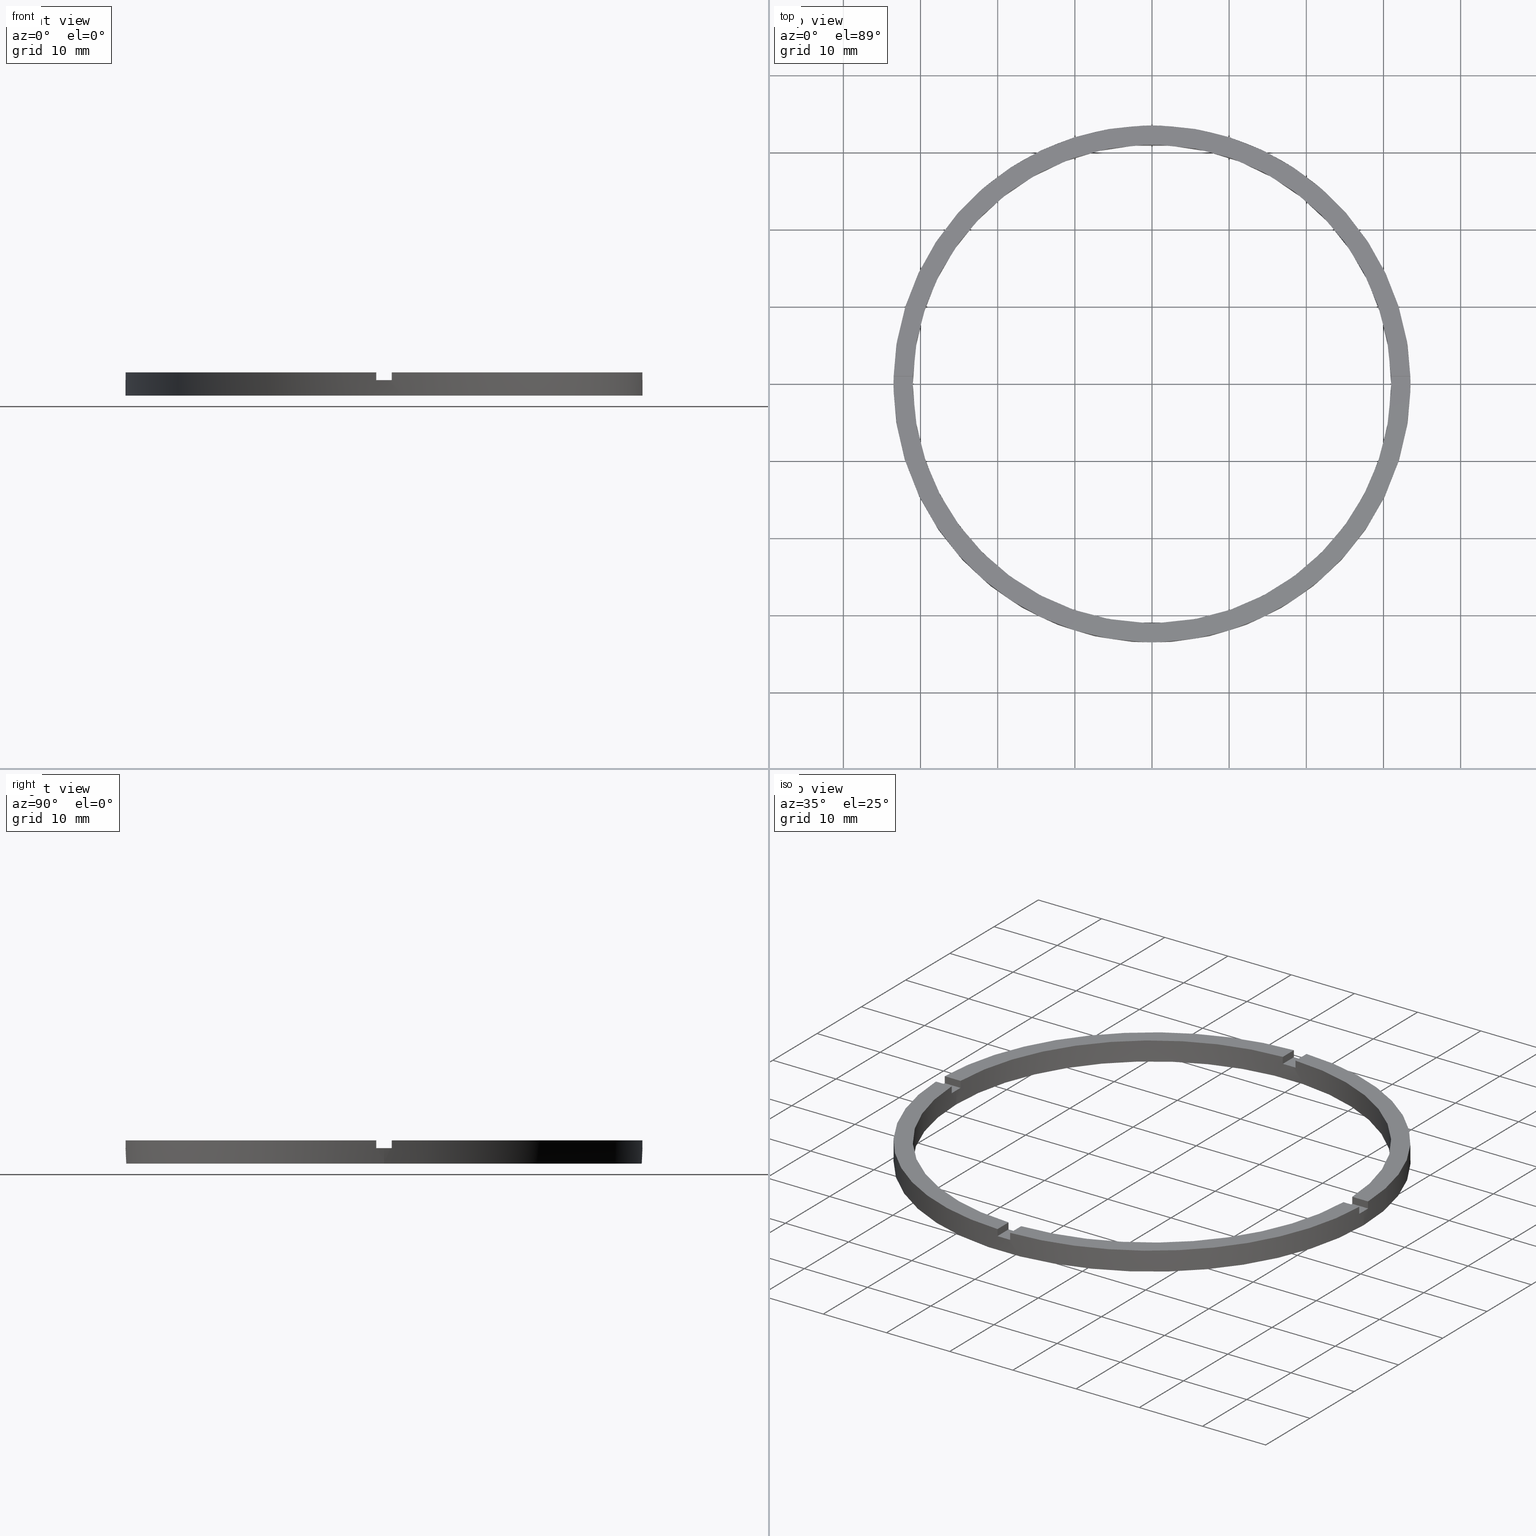
[diagram: canonical four-view strip — front | top / right | iso, engineering-drawing reading convention]
A machine part, canonical four-view strip (front | top / right | iso — engineering-drawing reading convention). The complete STEP part file that produces these views, byte-faithful:
ISO-10303-21;
HEADER;
FILE_DESCRIPTION (( 'STEP AP203' ),
    '1' );
FILE_NAME ('514139.step',
    '2024-12-26T02:41:16',
    ( 'MSI' ),
    ( '' ),
    'SwSTEP 2.0',
    'SolidWorks 2020',
    '' );
FILE_SCHEMA (( 'CONFIG_CONTROL_DESIGN' ));
ENDSEC;

DATA;
#1 = DIRECTION ( 'NONE',  ( -0.000000000000000000, -1.000000000000000000, -0.000000000000000000 ) ) ;
#2 = EDGE_CURVE ( 'NONE', #64, #483, #418, .T. ) ;
#3 = DIRECTION ( 'NONE',  ( -1.301042606982605074E-16, 1.000000000000000000, -0.000000000000000000 ) ) ;
#4 = ORIENTED_EDGE ( 'NONE', *, *, #566, .T. ) ;
#5 = DIRECTION ( 'NONE',  ( 1.000000000000000000, -0.000000000000000000, 0.000000000000000000 ) ) ;
#6 = ORIENTED_EDGE ( 'NONE', *, *, #600, .T. ) ;
#7 = AXIS2_PLACEMENT_3D ( 'NONE', #759, #772, #29 ) ;
#8 = EDGE_CURVE ( 'NONE', #726, #669, #150, .T. ) ;
#9 = CARTESIAN_POINT ( 'NONE',  ( -1.000000000000160982, -33.48507130050644065, 3.000000000000000000 ) ) ;
#10 = VERTEX_POINT ( 'NONE', #367 ) ;
#11 = CARTESIAN_POINT ( 'NONE',  ( -1.000000000000024647, 30.98386676965933617, 3.000000000000000000 ) ) ;
#12 = ORIENTED_EDGE ( 'NONE', *, *, #683, .F. ) ;
#13 = ORIENTED_EDGE ( 'NONE', *, *, #754, .F. ) ;
#14 = DIRECTION ( 'NONE',  ( -0.000000000000000000, 0.000000000000000000, 1.000000000000000000 ) ) ;
#15 = CC_DESIGN_PERSON_AND_ORGANIZATION_ASSIGNMENT ( #375, #182, ( #257 ) ) ;
#16 = EDGE_LOOP ( 'NONE', ( #226, #736, #491, #62 ) ) ;
#17 = EDGE_CURVE ( 'NONE', #325, #544, #747, .T. ) ;
#18 = ORIENTED_EDGE ( 'NONE', *, *, #566, .F. ) ;
#19 = CARTESIAN_POINT ( 'NONE',  ( 0.000000000000000000, 0.000000000000000000, 3.000000000000000000 ) ) ;
#20 = ORIENTED_EDGE ( 'NONE', *, *, #349, .T. ) ;
#21 = AXIS2_PLACEMENT_3D ( 'NONE', #649, #194, #66 ) ;
#22 = DIRECTION ( 'NONE',  ( -0.000000000000000000, -0.000000000000000000, -1.000000000000000000 ) ) ;
#23 = DIRECTION ( 'NONE',  ( 0.000000000000000000, 0.000000000000000000, 1.000000000000000000 ) ) ;
#24 = EDGE_CURVE ( 'NONE', #10, #503, #201, .T. ) ;
#25 = CARTESIAN_POINT ( 'NONE',  ( 0.9999999999998391287, -33.48507130050644776, 3.000000000000000000 ) ) ;
#26 = ADVANCED_FACE ( 'NONE', ( #727 ), #448, .F. ) ;
#27 = AXIS2_PLACEMENT_3D ( 'NONE', #710, #407, #569 ) ;
#28 = CARTESIAN_POINT ( 'NONE',  ( 0.000000000000000000, 0.000000000000000000, 3.000000000000000000 ) ) ;
#29 = DIRECTION ( 'NONE',  ( 1.000000000000000000, 0.000000000000000000, 0.000000000000000000 ) ) ;
#30 = AXIS2_PLACEMENT_3D ( 'NONE', #662, #22, #416 ) ;
#31 = EDGE_CURVE ( 'NONE', #58, #782, #718, .T. ) ;
#32 = ADVANCED_FACE ( 'NONE', ( #234 ), #230, .F. ) ;
#33 = CARTESIAN_POINT ( 'NONE',  ( 0.000000000000000000, 0.000000000000000000, 2.000000000000000000 ) ) ;
#34 = PERSON_AND_ORGANIZATION_ROLE ( 'design_supplier' ) ;
#35 = CARTESIAN_POINT ( 'NONE',  ( 0.000000000000000000, 0.000000000000000000, 3.000000000000000000 ) ) ;
#36 = CARTESIAN_POINT ( 'NONE',  ( -30.98386676965933617, 0.9999999999999740208, 2.000000000000000000 ) ) ;
#37 = DIRECTION ( 'NONE',  ( 0.000000000000000000, 0.000000000000000000, 1.000000000000000000 ) ) ;
#38 = PLANE ( 'NONE',  #163 ) ;
#39 = EDGE_CURVE ( 'NONE', #10, #436, #221, .T. ) ;
#40 = CARTESIAN_POINT ( 'NONE',  ( -1.000000000000161204, -30.98386676965932907, 3.000000000000000000 ) ) ;
#41 = EDGE_CURVE ( 'NONE', #592, #596, #735, .T. ) ;
#42 = CARTESIAN_POINT ( 'NONE',  ( 23.49999999999999289, -1.000000000000158984, 2.000000000000000000 ) ) ;
#43 = CARTESIAN_POINT ( 'NONE',  ( 30.98386676965933972, 0.9999999999998414602, 2.000000000000000000 ) ) ;
#44 = ADVANCED_FACE ( 'NONE', ( #468 ), #748, .T. ) ;
#45 = AXIS2_PLACEMENT_3D ( 'NONE', #469, #541, #229 ) ;
#46 = EDGE_CURVE ( 'NONE', #184, #524, #459, .T. ) ;
#47 = DIRECTION ( 'NONE',  ( 1.000000000000000000, 0.000000000000000000, 0.000000000000000000 ) ) ;
#48 = CARTESIAN_POINT ( 'NONE',  ( -30.98386676965933617, -1.000000000000025979, 3.000000000000000000 ) ) ;
#49 = MANIFOLD_SOLID_BREP ( '�г�-����1', #157 ) ;
#50 = AXIS2_PLACEMENT_3D ( 'NONE', #278, #390, #521 ) ;
#51 = CARTESIAN_POINT ( 'NONE',  ( -33.48507130050644776, 0.9999999999999735767, 3.000000000000000000 ) ) ;
#52 = VERTEX_POINT ( 'NONE', #9 ) ;
#53 = EDGE_CURVE ( 'NONE', #184, #730, #725, .T. ) ;
#54 = DIRECTION ( 'NONE',  ( -0.000000000000000000, -0.000000000000000000, -1.000000000000000000 ) ) ;
#55 = ORIENTED_EDGE ( 'NONE', *, *, #685, .F. ) ;
#56 = CARTESIAN_POINT ( 'NONE',  ( 23.49999999999999289, 0.9999999999998411271, 3.000000000000000000 ) ) ;
#57 = ORIENTED_EDGE ( 'NONE', *, *, #95, .T. ) ;
#58 = VERTEX_POINT ( 'NONE', #510 ) ;
#59 = EDGE_LOOP ( 'NONE', ( #473, #449, #729, #527, #583, #220, #770, #716, #532, #204, #4, #176 ) ) ;
#60 = CARTESIAN_POINT ( 'NONE',  ( 31.00000000000000000, 3.796405077356795115E-15, 3.000000000000000000 ) ) ;
#61 = EDGE_LOOP ( 'NONE', ( #198, #256, #274, #181 ) ) ;
#62 = ORIENTED_EDGE ( 'NONE', *, *, #107, .F. ) ;
#63 = VECTOR ( 'NONE', #132, 1000.000000000000000 ) ;
#64 = VERTEX_POINT ( 'NONE', #48 ) ;
#65 = VERTEX_POINT ( 'NONE', #139 ) ;
#66 = DIRECTION ( 'NONE',  ( 1.000000000000000000, 6.505213034913025371E-17, 0.000000000000000000 ) ) ;
#67 = APPLICATION_PROTOCOL_DEFINITION ( 'international standard', 'config_control_design', 1994, #424 ) ;
#68 = DIRECTION ( 'NONE',  ( 0.000000000000000000, 0.000000000000000000, 1.000000000000000000 ) ) ;
#69 = ORIENTED_EDGE ( 'NONE', *, *, #388, .F. ) ;
#70 = CARTESIAN_POINT ( 'NONE',  ( 0.9999999999999753530, 30.98386676965933617, 3.000000000000000000 ) ) ;
#71 = CIRCLE ( 'NONE', #45, 33.50000000000000000 ) ;
#72 = ORIENTED_EDGE ( 'NONE', *, *, #275, .T. ) ;
#73 = LINE ( 'NONE', #556, #604 ) ;
#74 = ORIENTED_EDGE ( 'NONE', *, *, #658, .F. ) ;
#75 = CARTESIAN_POINT ( 'NONE',  ( 0.000000000000000000, 0.000000000000000000, 0.000000000000000000 ) ) ;
#76 = CARTESIAN_POINT ( 'NONE',  ( 0.000000000000000000, 0.000000000000000000, 3.000000000000000000 ) ) ;
#77 = VECTOR ( 'NONE', #99, 1000.000000000000000 ) ;
#78 = LINE ( 'NONE', #688, #615 ) ;
#79 = VECTOR ( 'NONE', #350, 1000.000000000000000 ) ;
#80 = LINE ( 'NONE', #652, #93 ) ;
#81 = DIRECTION ( 'NONE',  ( 0.000000000000000000, 0.000000000000000000, 1.000000000000000000 ) ) ;
#82 = CARTESIAN_POINT ( 'NONE',  ( -23.50000000000018829, -1.000000000000024425, 2.000000000000000000 ) ) ;
#83 = FACE_OUTER_BOUND ( 'NONE', #706, .T. ) ;
#84 = VECTOR ( 'NONE', #699, 1000.000000000000000 ) ;
#85 = FACE_OUTER_BOUND ( 'NONE', #740, .T. ) ;
#86 = AXIS2_PLACEMENT_3D ( 'NONE', #578, #657, #402 ) ;
#87 = AXIS2_PLACEMENT_3D ( 'NONE', #721, #412, #504 ) ;
#88 = CIRCLE ( 'NONE', #293, 31.00000000000000000 ) ;
#89 = DIRECTION ( 'NONE',  ( 0.000000000000000000, 0.000000000000000000, 1.000000000000000000 ) ) ;
#90 = DIRECTION ( 'NONE',  ( 0.000000000000000000, 0.000000000000000000, 1.000000000000000000 ) ) ;
#91 = ADVANCED_FACE ( 'NONE', ( #472 ), #166, .T. ) ;
#92 = DIRECTION ( 'NONE',  ( 0.000000000000000000, 0.000000000000000000, 1.000000000000000000 ) ) ;
#93 = VECTOR ( 'NONE', #248, 1000.000000000000000 ) ;
#94 = DIRECTION ( 'NONE',  ( 1.000000000000000000, 0.000000000000000000, 0.000000000000000000 ) ) ;
#95 = EDGE_CURVE ( 'NONE', #595, #310, #192, .T. ) ;
#96 = LINE ( 'NONE', #776, #84 ) ;
#97 = FACE_OUTER_BOUND ( 'NONE', #673, .T. ) ;
#98 = CIRCLE ( 'NONE', #523, 31.00000000000000000 ) ;
#99 = DIRECTION ( 'NONE',  ( -0.000000000000000000, -0.000000000000000000, -1.000000000000000000 ) ) ;
#100 = LINE ( 'NONE', #42, #340 ) ;
#101 = CARTESIAN_POINT ( 'NONE',  ( 30.98386676965932907, -1.000000000000158540, 2.000000000000000000 ) ) ;
#102 = DIRECTION ( 'NONE',  ( -0.000000000000000000, 0.000000000000000000, 1.000000000000000000 ) ) ;
#103 = PERSON_AND_ORGANIZATION ( #617, #116 ) ;
#104 = AXIS2_PLACEMENT_3D ( 'NONE', #33, #37, #142 ) ;
#105 = CALENDAR_DATE ( 2024, 26, 12 ) ;
#106 = CARTESIAN_POINT ( 'NONE',  ( 0.9999999999999753530, 33.48507130050644776, 3.000000000000000000 ) ) ;
#107 = EDGE_CURVE ( 'NONE', #696, #310, #474, .T. ) ;
#108 = LOCAL_TIME ( 10, 41, 16.00000000000000000, #384 ) ;
#109 = PLANE ( 'NONE',  #244 ) ;
#110 = CARTESIAN_POINT ( 'NONE',  ( 0.000000000000000000, 0.000000000000000000, 2.000000000000000000 ) ) ;
#111 = PERSON_AND_ORGANIZATION ( #617, #116 ) ;
#112 = APPROVAL_PERSON_ORGANIZATION ( #111, #607, #225 ) ;
#113 = DIRECTION ( 'NONE',  ( -1.000000000000000000, -1.951563910473907735E-16, 0.000000000000000000 ) ) ;
#114 = CARTESIAN_POINT ( 'NONE',  ( -33.50000000000000000, 0.000000000000000000, 2.000000000000000000 ) ) ;
#115 = DATE_AND_TIME ( #627, #653 ) ;
#116 = ORGANIZATION ( 'δָ��', 'δָ��', '' ) ;
#117 = APPROVAL_DATE_TIME ( #638, #622 ) ;
#118 = PERSON_AND_ORGANIZATION ( #617, #116 ) ;
#119 = APPROVAL_PERSON_ORGANIZATION ( #646, #426, #379 ) ;
#120 = DIRECTION ( 'NONE',  ( 0.000000000000000000, 0.000000000000000000, 1.000000000000000000 ) ) ;
#121 = DATE_AND_TIME ( #105, #366 ) ;
#122 = EDGE_CURVE ( 'NONE', #312, #591, #454, .T. ) ;
#123 = DIRECTION ( 'NONE',  ( 0.000000000000000000, 0.000000000000000000, 1.000000000000000000 ) ) ;
#124 = DIRECTION ( 'NONE',  ( -0.000000000000000000, -0.000000000000000000, -1.000000000000000000 ) ) ;
#125 = AXIS2_PLACEMENT_3D ( 'NONE', #522, #102, #555 ) ;
#126 = EDGE_CURVE ( 'NONE', #488, #316, #741, .T. ) ;
#127 = DIRECTION ( 'NONE',  ( -0.000000000000000000, -0.000000000000000000, -1.000000000000000000 ) ) ;
#128 = DIRECTION ( 'NONE',  ( -0.000000000000000000, -0.000000000000000000, -1.000000000000000000 ) ) ;
#129 = APPROVAL_STATUS ( 'not_yet_approved' ) ;
#130 = CARTESIAN_POINT ( 'NONE',  ( -1.000000000000024647, 33.48507130050644065, 3.000000000000000000 ) ) ;
#131 = DIRECTION ( 'NONE',  ( 0.000000000000000000, -0.000000000000000000, 1.000000000000000000 ) ) ;
#132 = DIRECTION ( 'NONE',  ( 1.000000000000000000, 6.505213034913025371E-17, 0.000000000000000000 ) ) ;
#133 = ADVANCED_FACE ( 'NONE', ( #731 ), #398, .F. ) ;
#134 = CARTESIAN_POINT ( 'NONE',  ( 33.48507130050644776, 0.9999999999998416822, 3.000000000000000000 ) ) ;
#135 = CC_DESIGN_APPROVAL ( #607, ( #550 ) ) ;
#136 = ADVANCED_FACE ( 'NONE', ( #205 ), #443, .T. ) ;
#137 = EDGE_CURVE ( 'NONE', #704, #331, #215, .T. ) ;
#138 = DIRECTION ( 'NONE',  ( 1.000000000000000000, 0.000000000000000000, 0.000000000000000000 ) ) ;
#139 = CARTESIAN_POINT ( 'NONE',  ( 0.9999999999999753530, 33.48507130050644776, 3.000000000000000000 ) ) ;
#140 = AXIS2_PLACEMENT_3D ( 'NONE', #457, #629, #262 ) ;
#141 = CC_DESIGN_PERSON_AND_ORGANIZATION_ASSIGNMENT ( #371, #630, ( #169 ) ) ;
#142 = DIRECTION ( 'NONE',  ( 1.000000000000000000, 0.000000000000000000, -0.000000000000000000 ) ) ;
#143 = MECHANICAL_CONTEXT ( 'NONE', #424, 'mechanical' ) ;
#144 = DIRECTION ( 'NONE',  ( 0.000000000000000000, 0.000000000000000000, 1.000000000000000000 ) ) ;
#145 = CARTESIAN_POINT ( 'NONE',  ( 30.98386676965933972, 0.9999999999998414602, 3.000000000000000000 ) ) ;
#146 = EDGE_CURVE ( 'NONE', #310, #775, #500, .T. ) ;
#147 = UNCERTAINTY_MEASURE_WITH_UNIT (LENGTH_MEASURE( 1.000000000000000082E-05 ), #263, 'distance_accuracy_value', 'NONE');
#148 = DIRECTION ( 'NONE',  ( 1.000000000000000000, 6.505213034913025371E-17, 0.000000000000000000 ) ) ;
#149 = DIRECTION ( 'NONE',  ( 1.000000000000000000, 0.000000000000000000, 0.000000000000000000 ) ) ;
#150 = LINE ( 'NONE', #279, #414 ) ;
#151 = VERTEX_POINT ( 'NONE', #773 ) ;
#152 = AXIS2_PLACEMENT_3D ( 'NONE', #353, #236, #288 ) ;
#153 = EDGE_LOOP ( 'NONE', ( #57, #576, #447, #168 ) ) ;
#154 = ORIENTED_EDGE ( 'NONE', *, *, #437, .T. ) ;
#155 = ORIENTED_EDGE ( 'NONE', *, *, #547, .F. ) ;
#156 = AXIS2_PLACEMENT_3D ( 'NONE', #35, #251, #308 ) ;
#157 = CLOSED_SHELL ( 'NONE', ( #32, #383, #188, #394, #136, #313, #564, #44, #26, #761, #560, #668, #133, #321, #309, #525, #640, #91, #199, #677, #209 ) ) ;
#158 = ORIENTED_EDGE ( 'NONE', *, *, #261, .T. ) ;
#159 = EDGE_LOOP ( 'NONE', ( #580, #680, #264, #155 ) ) ;
#160 = ORIENTED_EDGE ( 'NONE', *, *, #767, .T. ) ;
#161 = DIRECTION ( 'NONE',  ( -6.505213034913025371E-17, 1.000000000000000000, 0.000000000000000000 ) ) ;
#162 = ORIENTED_EDGE ( 'NONE', *, *, #377, .T. ) ;
#163 = AXIS2_PLACEMENT_3D ( 'NONE', #82, #528, #571 ) ;
#164 = CARTESIAN_POINT ( 'NONE',  ( -1.000000000000161204, -30.98386676965932907, 2.000000000000000000 ) ) ;
#165 = EDGE_CURVE ( 'NONE', #592, #674, #744, .T. ) ;
#166 = PLANE ( 'NONE',  #634 ) ;
#167 = CARTESIAN_POINT ( 'NONE',  ( 0.9999999999999753530, 23.50000000000000000, 3.000000000000000000 ) ) ;
#168 = ORIENTED_EDGE ( 'NONE', *, *, #458, .T. ) ;
#169 = SECURITY_CLASSIFICATION ( '', '', #670 ) ;
#170 = EDGE_CURVE ( 'NONE', #669, #596, #750, .T. ) ;
#171 = ORIENTED_EDGE ( 'NONE', *, *, #777, .T. ) ;
#172 = DIRECTION ( 'NONE',  ( -1.000000000000000000, 0.000000000000000000, 0.000000000000000000 ) ) ;
#173 = ORIENTED_EDGE ( 'NONE', *, *, #626, .T. ) ;
#174 = ORIENTED_EDGE ( 'NONE', *, *, #165, .F. ) ;
#175 = AXIS2_PLACEMENT_3D ( 'NONE', #441, #684, #180 ) ;
#176 = ORIENTED_EDGE ( 'NONE', *, *, #406, .F. ) ;
#177 = ORIENTED_EDGE ( 'NONE', *, *, #547, .T. ) ;
#178 = EDGE_LOOP ( 'NONE', ( #781, #158, #543, #189, #538, #440, #266, #206, #478, #239, #749, #492 ) ) ;
#179 = FACE_OUTER_BOUND ( 'NONE', #745, .T. ) ;
#180 = DIRECTION ( 'NONE',  ( 1.000000000000000000, 0.000000000000000000, 0.000000000000000000 ) ) ;
#181 = ORIENTED_EDGE ( 'NONE', *, *, #664, .F. ) ;
#182 = PERSON_AND_ORGANIZATION_ROLE ( 'creator' ) ;
#183 = DIRECTION ( 'NONE',  ( 0.000000000000000000, 0.000000000000000000, 1.000000000000000000 ) ) ;
#184 = VERTEX_POINT ( 'NONE', #36 ) ;
#185 = EDGE_CURVE ( 'NONE', #422, #775, #476, .T. ) ;
#186 = LINE ( 'NONE', #328, #193 ) ;
#187 = ORIENTED_EDGE ( 'NONE', *, *, #126, .F. ) ;
#188 = ADVANCED_FACE ( 'NONE', ( #480 ), #446, .T. ) ;
#189 = ORIENTED_EDGE ( 'NONE', *, *, #754, .T. ) ;
#190 = VECTOR ( 'NONE', #425, 1000.000000000000000 ) ;
#191 = ORIENTED_EDGE ( 'NONE', *, *, #626, .F. ) ;
#192 = CIRCLE ( 'NONE', #586, 33.50000000000000000 ) ;
#193 = VECTOR ( 'NONE', #531, 1000.000000000000000 ) ;
#194 = DIRECTION ( 'NONE',  ( 6.505213034913025371E-17, -1.000000000000000000, 0.000000000000000000 ) ) ;
#195 = ORIENTED_EDGE ( 'NONE', *, *, #41, .T. ) ;
#196 = VECTOR ( 'NONE', #537, 1000.000000000000000 ) ;
#197 = AXIS2_PLACEMENT_3D ( 'NONE', #305, #619, #94 ) ;
#198 = ORIENTED_EDGE ( 'NONE', *, *, #553, .F. ) ;
#199 = ADVANCED_FACE ( 'NONE', ( #738 ), #565, .F. ) ;
#200 = VERTEX_POINT ( 'NONE', #70 ) ;
#201 = LINE ( 'NONE', #554, #723 ) ;
#202 = DIRECTION ( 'NONE',  ( 0.000000000000000000, 0.000000000000000000, 1.000000000000000000 ) ) ;
#203 = CARTESIAN_POINT ( 'NONE',  ( 0.000000000000000000, 0.000000000000000000, 0.000000000000000000 ) ) ;
#204 = ORIENTED_EDGE ( 'NONE', *, *, #587, .F. ) ;
#205 = FACE_OUTER_BOUND ( 'NONE', #676, .T. ) ;
#206 = ORIENTED_EDGE ( 'NONE', *, *, #664, .T. ) ;
#207 = ORIENTED_EDGE ( 'NONE', *, *, #269, .T. ) ;
#208 = VECTOR ( 'NONE', #724, 1000.000000000000000 ) ;
#209 = ADVANCED_FACE ( 'NONE', ( #211 ), #265, .T. ) ;
#210 = ORIENTED_EDGE ( 'NONE', *, *, #458, .F. ) ;
#211 = FACE_OUTER_BOUND ( 'NONE', #513, .T. ) ;
#212 = CARTESIAN_POINT ( 'NONE',  ( -1.000000000000160982, -33.48507130050644065, 2.000000000000000000 ) ) ;
#213 = CARTESIAN_POINT ( 'NONE',  ( 0.9999999999998389066, -30.98386676965933972, 3.000000000000000000 ) ) ;
#214 = DIRECTION ( 'NONE',  ( 1.000000000000000000, 0.000000000000000000, 0.000000000000000000 ) ) ;
#215 = LINE ( 'NONE', #779, #484 ) ;
#216 = CARTESIAN_POINT ( 'NONE',  ( 23.49999999999999289, 0.9999999999998411271, 2.000000000000000000 ) ) ;
#217 = ORIENTED_EDGE ( 'NONE', *, *, #509, .F. ) ;
#218 = VECTOR ( 'NONE', #637, 1000.000000000000000 ) ;
#219 = EDGE_CURVE ( 'NONE', #704, #462, #493, .T. ) ;
#220 = ORIENTED_EDGE ( 'NONE', *, *, #437, .F. ) ;
#221 = CIRCLE ( 'NONE', #508, 33.50000000000000000 ) ;
#222 = EDGE_LOOP ( 'NONE', ( #496, #428, #413, #751, #692, #315 ) ) ;
#223 = DESIGN_CONTEXT ( 'detailed design', #561, 'design' ) ;
#224 = CARTESIAN_POINT ( 'NONE',  ( 0.9999999999999753530, 33.48507130050644776, 2.000000000000000000 ) ) ;
#225 = APPROVAL_ROLE ( '' ) ;
#226 = ORIENTED_EDGE ( 'NONE', *, *, #388, .T. ) ;
#227 = VERTEX_POINT ( 'NONE', #689 ) ;
#228 = DIRECTION ( 'NONE',  ( 0.000000000000000000, 0.000000000000000000, 1.000000000000000000 ) ) ;
#229 = DIRECTION ( 'NONE',  ( 1.000000000000000000, 0.000000000000000000, 0.000000000000000000 ) ) ;
#230 = CYLINDRICAL_SURFACE ( 'NONE', #30, 31.00000000000000000 ) ;
#231 = ORIENTED_EDGE ( 'NONE', *, *, #261, .F. ) ;
#232 = VECTOR ( 'NONE', #127, 1000.000000000000000 ) ;
#233 = VECTOR ( 'NONE', #535, 1000.000000000000000 ) ;
#234 = FACE_OUTER_BOUND ( 'NONE', #59, .T. ) ;
#235 = PLANE ( 'NONE',  #487 ) ;
#236 = DIRECTION ( 'NONE',  ( 0.000000000000000000, 0.000000000000000000, 1.000000000000000000 ) ) ;
#237 = FACE_OUTER_BOUND ( 'NONE', #453, .T. ) ;
#238 = CIRCLE ( 'NONE', #86, 33.50000000000000000 ) ;
#239 = ORIENTED_EDGE ( 'NONE', *, *, #612, .T. ) ;
#240 = LINE ( 'NONE', #167, #507 ) ;
#241 = CARTESIAN_POINT ( 'NONE',  ( 0.000000000000000000, 0.000000000000000000, 3.000000000000000000 ) ) ;
#242 = CIRCLE ( 'NONE', #87, 33.50000000000000000 ) ;
#243 = DIRECTION ( 'NONE',  ( 1.000000000000000000, 0.000000000000000000, 0.000000000000000000 ) ) ;
#244 = AXIS2_PLACEMENT_3D ( 'NONE', #700, #161, #292 ) ;
#245 = CARTESIAN_POINT ( 'NONE',  ( 0.9999999999998377964, -23.50000000000018119, 3.000000000000000000 ) ) ;
#246 = ORIENTED_EDGE ( 'NONE', *, *, #39, .F. ) ;
#247 = PLANE ( 'NONE',  #558 ) ;
#248 = DIRECTION ( 'NONE',  ( -0.000000000000000000, -0.000000000000000000, -1.000000000000000000 ) ) ;
#249 = ORIENTED_EDGE ( 'NONE', *, *, #599, .F. ) ;
#250 = AXIS2_PLACEMENT_3D ( 'NONE', #567, #562, #138 ) ;
#251 = DIRECTION ( 'NONE',  ( -0.000000000000000000, -0.000000000000000000, -1.000000000000000000 ) ) ;
#252 = CARTESIAN_POINT ( 'NONE',  ( -1.000000000000162315, -23.50000000000018119, 2.000000000000000000 ) ) ;
#253 = EDGE_CURVE ( 'NONE', #462, #415, #715, .T. ) ;
#254 = VERTEX_POINT ( 'NONE', #574 ) ;
#255 = DIRECTION ( 'NONE',  ( 0.000000000000000000, 0.000000000000000000, 1.000000000000000000 ) ) ;
#256 = ORIENTED_EDGE ( 'NONE', *, *, #165, .T. ) ;
#257 = PRODUCT_DEFINITION_FORMATION_WITH_SPECIFIED_SOURCE ( '�κ�', '', #306, .NOT_KNOWN. ) ;
#258 = ORIENTED_EDGE ( 'NONE', *, *, #427, .F. ) ;
#259 = DIRECTION ( 'NONE',  ( -0.000000000000000000, -0.000000000000000000, -1.000000000000000000 ) ) ;
#260 = DIRECTION ( 'NONE',  ( 0.000000000000000000, 0.000000000000000000, 1.000000000000000000 ) ) ;
#261 = EDGE_CURVE ( 'NONE', #58, #415, #482, .T. ) ;
#262 = DIRECTION ( 'NONE',  ( 1.000000000000000000, 0.000000000000000000, 0.000000000000000000 ) ) ;
#263 =( LENGTH_UNIT ( ) NAMED_UNIT ( * ) SI_UNIT ( .MILLI., .METRE. ) );
#264 = ORIENTED_EDGE ( 'NONE', *, *, #360, .T. ) ;
#265 = PLANE ( 'NONE',  #582 ) ;
#266 = ORIENTED_EDGE ( 'NONE', *, *, #17, .F. ) ;
#267 = CARTESIAN_POINT ( 'NONE',  ( 33.50000000000000000, 4.102566777143633774E-15, 3.000000000000000000 ) ) ;
#268 = CARTESIAN_POINT ( 'NONE',  ( -30.98386676965933617, 0.9999999999999740208, 3.000000000000000000 ) ) ;
#269 = EDGE_CURVE ( 'NONE', #331, #415, #463, .T. ) ;
#270 = ORIENTED_EDGE ( 'NONE', *, *, #219, .F. ) ;
#271 = CARTESIAN_POINT ( 'NONE',  ( 23.49999999999999289, -1.000000000000158984, 3.000000000000000000 ) ) ;
#272 = APPLICATION_PROTOCOL_DEFINITION ( 'international standard', 'config_control_design', 1994, #561 ) ;
#273 = AXIS2_PLACEMENT_3D ( 'NONE', #252, #365, #659 ) ;
#274 = ORIENTED_EDGE ( 'NONE', *, *, #276, .F. ) ;
#275 = EDGE_CURVE ( 'NONE', #595, #52, #486, .T. ) ;
#276 = EDGE_CURVE ( 'NONE', #730, #674, #186, .T. ) ;
#277 = CARTESIAN_POINT ( 'NONE',  ( 0.000000000000000000, 0.000000000000000000, 2.000000000000000000 ) ) ;
#278 = CARTESIAN_POINT ( 'NONE',  ( 0.000000000000000000, 0.000000000000000000, 3.000000000000000000 ) ) ;
#279 = CARTESIAN_POINT ( 'NONE',  ( 0.9999999999999753530, 23.50000000000000000, 2.000000000000000000 ) ) ;
#280 = CARTESIAN_POINT ( 'NONE',  ( -31.00000000000000000, 0.000000000000000000, 0.000000000000000000 ) ) ;
#281 = APPROVAL_ROLE ( '' ) ;
#282 = CARTESIAN_POINT ( 'NONE',  ( 0.9999999999998377964, -23.50000000000018119, 2.000000000000000000 ) ) ;
#283 = DIRECTION ( 'NONE',  ( -0.000000000000000000, -0.000000000000000000, -1.000000000000000000 ) ) ;
#284 = AXIS2_PLACEMENT_3D ( 'NONE', #203, #90, #430 ) ;
#285 = CARTESIAN_POINT ( 'NONE',  ( -1.000000000000160982, -33.48507130050644065, 3.000000000000000000 ) ) ;
#286 = EDGE_CURVE ( 'NONE', #524, #488, #464, .T. ) ;
#287 = EDGE_CURVE ( 'NONE', #726, #200, #497, .T. ) ;
#288 = DIRECTION ( 'NONE',  ( 1.000000000000000000, 0.000000000000000000, -0.000000000000000000 ) ) ;
#289 = CC_DESIGN_PERSON_AND_ORGANIZATION_ASSIGNMENT ( #647, #326, ( #306 ) ) ;
#290 = DIRECTION ( 'NONE',  ( 0.000000000000000000, 0.000000000000000000, 1.000000000000000000 ) ) ;
#291 = DIRECTION ( 'NONE',  ( -0.000000000000000000, 0.000000000000000000, 1.000000000000000000 ) ) ;
#292 = DIRECTION ( 'NONE',  ( -1.000000000000000000, -6.505213034913025371E-17, 0.000000000000000000 ) ) ;
#293 = AXIS2_PLACEMENT_3D ( 'NONE', #519, #423, #385 ) ;
#294 = PRODUCT_RELATED_PRODUCT_CATEGORY ( 'detail', '', ( #306 ) ) ;
#295 = PLANE ( 'NONE',  #681 ) ;
#296 = EDGE_CURVE ( 'NONE', #254, #64, #466, .T. ) ;
#297 = DIRECTION ( 'NONE',  ( 1.000000000000000000, 0.000000000000000000, -0.000000000000000000 ) ) ;
#298 = CARTESIAN_POINT ( 'NONE',  ( 33.48507130050644776, 0.9999999999998416822, 2.000000000000000000 ) ) ;
#299 = AXIS2_PLACEMENT_3D ( 'NONE', #110, #291, #243 ) ;
#300 = DIRECTION ( 'NONE',  ( 1.000000000000000000, 1.951563910473907735E-16, -0.000000000000000000 ) ) ;
#301 = AXIS2_PLACEMENT_3D ( 'NONE', #282, #336, #568 ) ;
#302 = ADVANCED_BREP_SHAPE_REPRESENTATION ( '514139', ( #49, #284 ), #452 ) ;
#303 = CARTESIAN_POINT ( 'NONE',  ( -30.98386676965933617, 0.9999999999999740208, 3.000000000000000000 ) ) ;
#304 = PRODUCT_DEFINITION_SHAPE ( 'NONE', 'NONE',  #550 ) ;
#305 = CARTESIAN_POINT ( 'NONE',  ( 0.000000000000000000, 0.000000000000000000, 2.000000000000000000 ) ) ;
#306 = PRODUCT ( '514139', '514139', '', ( #143 ) ) ;
#307 = DATE_TIME_ROLE ( 'classification_date' ) ;
#308 = DIRECTION ( 'NONE',  ( -1.000000000000000000, 0.000000000000000000, 0.000000000000000000 ) ) ;
#309 = ADVANCED_FACE ( 'NONE', ( #499 ), #417, .T. ) ;
#310 = VERTEX_POINT ( 'NONE', #470 ) ;
#311 = CARTESIAN_POINT ( 'NONE',  ( 0.9999999999998389066, -30.98386676965933972, 2.000000000000000000 ) ) ;
#312 = VERTEX_POINT ( 'NONE', #542 ) ;
#313 = ADVANCED_FACE ( 'NONE', ( #708 ), #404, .T. ) ;
#314 = ORIENTED_EDGE ( 'NONE', *, *, #107, .T. ) ;
#315 = ORIENTED_EDGE ( 'NONE', *, *, #46, .T. ) ;
#316 = VERTEX_POINT ( 'NONE', #344 ) ;
#317 = DIRECTION ( 'NONE',  ( 1.301042606982605074E-16, -1.000000000000000000, 0.000000000000000000 ) ) ;
#318 = CARTESIAN_POINT ( 'NONE',  ( -1.000000000000024647, 23.50000000000000000, 2.000000000000000000 ) ) ;
#319 = ORIENTED_EDGE ( 'NONE', *, *, #661, .T. ) ;
#320 = ORIENTED_EDGE ( 'NONE', *, *, #377, .F. ) ;
#321 = ADVANCED_FACE ( 'NONE', ( #179 ), #728, .F. ) ;
#322 = LINE ( 'NONE', #106, #590 ) ;
#323 = ORIENTED_EDGE ( 'NONE', *, *, #170, .T. ) ;
#324 = CARTESIAN_POINT ( 'NONE',  ( -1.000000000000024647, 33.48507130050644065, 2.000000000000000000 ) ) ;
#325 = VERTEX_POINT ( 'NONE', #11 ) ;
#326 = PERSON_AND_ORGANIZATION_ROLE ( 'design_owner' ) ;
#327 = CARTESIAN_POINT ( 'NONE',  ( -33.50000000000000000, 0.000000000000000000, 3.000000000000000000 ) ) ;
#328 = CARTESIAN_POINT ( 'NONE',  ( -23.50000000000018829, 0.9999999999999754641, 3.000000000000000000 ) ) ;
#329 = AXIS2_PLACEMENT_3D ( 'NONE', #75, #89, #771 ) ;
#330 = VECTOR ( 'NONE', #778, 1000.000000000000000 ) ;
#331 = VERTEX_POINT ( 'NONE', #298 ) ;
#332 = VERTEX_POINT ( 'NONE', #498 ) ;
#333 = ORIENTED_EDGE ( 'NONE', *, *, #393, .F. ) ;
#334 = ORIENTED_EDGE ( 'NONE', *, *, #335, .F. ) ;
#335 = EDGE_CURVE ( 'NONE', #254, #52, #242, .T. ) ;
#336 = DIRECTION ( 'NONE',  ( 1.000000000000000000, 1.301042606982605074E-16, 0.000000000000000000 ) ) ;
#337 = CARTESIAN_POINT ( 'NONE',  ( 30.98386676965933972, 0.9999999999998414602, 3.000000000000000000 ) ) ;
#338 = CARTESIAN_POINT ( 'NONE',  ( 0.9999999999999753530, 30.98386676965933617, 3.000000000000000000 ) ) ;
#339 = CIRCLE ( 'NONE', #140, 31.00000000000000000 ) ;
#340 = VECTOR ( 'NONE', #148, 1000.000000000000000 ) ;
#341 = DIRECTION ( 'NONE',  ( -1.951563910473907735E-16, 1.000000000000000000, 0.000000000000000000 ) ) ;
#342 = VECTOR ( 'NONE', #317, 1000.000000000000000 ) ;
#343 = DIRECTION ( 'NONE',  ( 0.000000000000000000, 0.000000000000000000, 1.000000000000000000 ) ) ;
#344 = CARTESIAN_POINT ( 'NONE',  ( -33.50000000000000000, 0.000000000000000000, 0.000000000000000000 ) ) ;
#345 = AXIS2_PLACEMENT_3D ( 'NONE', #529, #144, #643 ) ;
#346 = CIRCLE ( 'NONE', #175, 31.00000000000000000 ) ;
#347 = LINE ( 'NONE', #545, #359 ) ;
#348 = CIRCLE ( 'NONE', #329, 31.00000000000000000 ) ;
#349 = EDGE_CURVE ( 'NONE', #524, #674, #762, .T. ) ;
#350 = DIRECTION ( 'NONE',  ( 1.000000000000000000, 1.951563910473907735E-16, -0.000000000000000000 ) ) ;
#351 = FACE_BOUND ( 'NONE', #743, .T. ) ;
#352 = CARTESIAN_POINT ( 'NONE',  ( 0.000000000000000000, 0.000000000000000000, 0.000000000000000000 ) ) ;
#353 = CARTESIAN_POINT ( 'NONE',  ( 0.000000000000000000, 0.000000000000000000, 3.000000000000000000 ) ) ;
#354 = LINE ( 'NONE', #267, #77 ) ;
#355 = CIRCLE ( 'NONE', #403, 31.00000000000000000 ) ;
#356 = CIRCLE ( 'NONE', #732, 33.50000000000000000 ) ;
#357 = CIRCLE ( 'NONE', #250, 31.00000000000000000 ) ;
#358 = CIRCLE ( 'NONE', #7, 33.50000000000000000 ) ;
#359 = VECTOR ( 'NONE', #283, 1000.000000000000000 ) ;
#360 = EDGE_CURVE ( 'NONE', #200, #65, #240, .T. ) ;
#361 = CIRCLE ( 'NONE', #694, 31.00000000000000000 ) ;
#362 = CARTESIAN_POINT ( 'NONE',  ( -33.48507130050644776, 0.9999999999999735767, 3.000000000000000000 ) ) ;
#363 = CARTESIAN_POINT ( 'NONE',  ( 0.9999999999998391287, -33.48507130050644776, 3.000000000000000000 ) ) ;
#364 = COORDINATED_UNIVERSAL_TIME_OFFSET ( 8, 0, .AHEAD. ) ;
#365 = DIRECTION ( 'NONE',  ( -1.000000000000000000, -1.301042606982605074E-16, 0.000000000000000000 ) ) ;
#366 = LOCAL_TIME ( 10, 41, 16.00000000000000000, #364 ) ;
#367 = CARTESIAN_POINT ( 'NONE',  ( 33.48507130050644065, -1.000000000000158318, 2.000000000000000000 ) ) ;
#368 = COORDINATED_UNIVERSAL_TIME_OFFSET ( 8, 0, .AHEAD. ) ;
#369 = SHAPE_DEFINITION_REPRESENTATION ( #304, #302 ) ;
#370 = COORDINATED_UNIVERSAL_TIME_OFFSET ( 8, 0, .AHEAD. ) ;
#371 = PERSON_AND_ORGANIZATION ( #617, #116 ) ;
#372 = AXIS2_PLACEMENT_3D ( 'NONE', #277, #81, #514 ) ;
#373 = CALENDAR_DATE ( 2024, 26, 12 ) ;
#374 = DIRECTION ( 'NONE',  ( 1.000000000000000000, 0.000000000000000000, 0.000000000000000000 ) ) ;
#375 = PERSON_AND_ORGANIZATION ( #617, #116 ) ;
#376 = AXIS2_PLACEMENT_3D ( 'NONE', #19, #557, #746 ) ;
#377 = EDGE_CURVE ( 'NONE', #316, #227, #763, .T. ) ;
#378 = DATE_AND_TIME ( #373, #631 ) ;
#379 = APPROVAL_ROLE ( '' ) ;
#380 = DIRECTION ( 'NONE',  ( 0.000000000000000000, 0.000000000000000000, 1.000000000000000000 ) ) ;
#381 = PERSON_AND_ORGANIZATION ( #617, #116 ) ;
#382 = DATE_AND_TIME ( #633, #387 ) ;
#383 = ADVANCED_FACE ( 'NONE', ( #755 ), #757, .T. ) ;
#384 = COORDINATED_UNIVERSAL_TIME_OFFSET ( 8, 0, .AHEAD. ) ;
#385 = DIRECTION ( 'NONE',  ( 1.000000000000000000, 0.000000000000000000, 0.000000000000000000 ) ) ;
#386 =( NAMED_UNIT ( * ) SI_UNIT ( $, .STERADIAN. ) SOLID_ANGLE_UNIT ( ) );
#387 = LOCAL_TIME ( 10, 41, 16.00000000000000000, #641 ) ;
#388 = EDGE_CURVE ( 'NONE', #696, #714, #760, .T. ) ;
#389 = PLANE ( 'NONE',  #656 ) ;
#390 = DIRECTION ( 'NONE',  ( 0.000000000000000000, 0.000000000000000000, 1.000000000000000000 ) ) ;
#391 = DIRECTION ( 'NONE',  ( 0.000000000000000000, 0.000000000000000000, 1.000000000000000000 ) ) ;
#392 = APPROVAL_STATUS ( 'not_yet_approved' ) ;
#393 = EDGE_CURVE ( 'NONE', #227, #316, #238, .T. ) ;
#394 = ADVANCED_FACE ( 'NONE', ( #237 ), #295, .T. ) ;
#395 = CARTESIAN_POINT ( 'NONE',  ( -30.98386676965933617, -1.000000000000025979, 2.000000000000000000 ) ) ;
#396 = DIRECTION ( 'NONE',  ( 0.000000000000000000, -0.000000000000000000, 1.000000000000000000 ) ) ;
#397 = DIRECTION ( 'NONE',  ( 0.000000000000000000, 0.000000000000000000, -1.000000000000000000 ) ) ;
#398 = PLANE ( 'NONE',  #301 ) ;
#399 = DIRECTION ( 'NONE',  ( 1.000000000000000000, 0.000000000000000000, -0.000000000000000000 ) ) ;
#400 = CC_DESIGN_SECURITY_CLASSIFICATION ( #169, ( #257 ) ) ;
#401 = CARTESIAN_POINT ( 'NONE',  ( 0.000000000000000000, 0.000000000000000000, 0.000000000000000000 ) ) ;
#402 = DIRECTION ( 'NONE',  ( 1.000000000000000000, 0.000000000000000000, 0.000000000000000000 ) ) ;
#403 = AXIS2_PLACEMENT_3D ( 'NONE', #28, #678, #429 ) ;
#404 = PLANE ( 'NONE',  #152 ) ;
#405 = AXIS2_PLACEMENT_3D ( 'NONE', #318, #172, #23 ) ;
#406 = EDGE_CURVE ( 'NONE', #518, #332, #606, .T. ) ;
#407 = DIRECTION ( 'NONE',  ( -0.000000000000000000, -0.000000000000000000, -1.000000000000000000 ) ) ;
#408 = CARTESIAN_POINT ( 'NONE',  ( 0.9999999999999753530, 23.50000000000000000, 2.000000000000000000 ) ) ;
#409 = EDGE_CURVE ( 'NONE', #782, #591, #98, .T. ) ;
#410 = ORIENTED_EDGE ( 'NONE', *, *, #661, .F. ) ;
#411 = EDGE_LOOP ( 'NONE', ( #410, #246, #671, #74, #314, #481, #72, #334, #450, #258, #703, #162 ) ) ;
#412 = DIRECTION ( 'NONE',  ( 0.000000000000000000, 0.000000000000000000, 1.000000000000000000 ) ) ;
#413 = ORIENTED_EDGE ( 'NONE', *, *, #549, .T. ) ;
#414 = VECTOR ( 'NONE', #511, 1000.000000000000000 ) ;
#415 = VERTEX_POINT ( 'NONE', #43 ) ;
#416 = DIRECTION ( 'NONE',  ( -1.000000000000000000, 0.000000000000000000, 0.000000000000000000 ) ) ;
#417 = PLANE ( 'NONE',  #299 ) ;
#418 = CIRCLE ( 'NONE', #739, 31.00000000000000000 ) ;
#419 = ORIENTED_EDGE ( 'NONE', *, *, #533, .F. ) ;
#420 = ORIENTED_EDGE ( 'NONE', *, *, #697, .T. ) ;
#421 = CARTESIAN_POINT ( 'NONE',  ( 0.000000000000000000, 0.000000000000000000, 2.000000000000000000 ) ) ;
#422 = VERTEX_POINT ( 'NONE', #164 ) ;
#423 = DIRECTION ( 'NONE',  ( 0.000000000000000000, 0.000000000000000000, 1.000000000000000000 ) ) ;
#424 = APPLICATION_CONTEXT ( 'configuration controlled 3d designs of mechanical parts and assemblies' ) ;
#425 = DIRECTION ( 'NONE',  ( -0.000000000000000000, -0.000000000000000000, -1.000000000000000000 ) ) ;
#426 = APPROVAL ( #392, 'δָ��' ) ;
#427 = EDGE_CURVE ( 'NONE', #488, #151, #71, .T. ) ;
#428 = ORIENTED_EDGE ( 'NONE', *, *, #427, .T. ) ;
#429 = DIRECTION ( 'NONE',  ( 1.000000000000000000, 0.000000000000000000, 0.000000000000000000 ) ) ;
#430 = DIRECTION ( 'NONE',  ( 1.000000000000000000, 0.000000000000000000, 0.000000000000000000 ) ) ;
#431 = ORIENTED_EDGE ( 'NONE', *, *, #46, .F. ) ;
#432 = AXIS2_PLACEMENT_3D ( 'NONE', #572, #228, #651 ) ;
#433 = ORIENTED_EDGE ( 'NONE', *, *, #549, .F. ) ;
#434 = CARTESIAN_POINT ( 'NONE',  ( 0.000000000000000000, 0.000000000000000000, 0.000000000000000000 ) ) ;
#435 = CARTESIAN_POINT ( 'NONE',  ( -1.000000000000161204, -30.98386676965932907, 3.000000000000000000 ) ) ;
#436 = VERTEX_POINT ( 'NONE', #548 ) ;
#437 = EDGE_CURVE ( 'NONE', #64, #445, #80, .T. ) ;
#438 = ORIENTED_EDGE ( 'NONE', *, *, #219, .T. ) ;
#439 = ORIENTED_EDGE ( 'NONE', *, *, #296, .F. ) ;
#440 = ORIENTED_EDGE ( 'NONE', *, *, #599, .T. ) ;
#441 = CARTESIAN_POINT ( 'NONE',  ( 0.000000000000000000, 0.000000000000000000, 2.000000000000000000 ) ) ;
#442 = APPROVAL_STATUS ( 'not_yet_approved' ) ;
#443 = PLANE ( 'NONE',  #345 ) ;
#444 = DIRECTION ( 'NONE',  ( 1.301042606982605074E-16, -1.000000000000000000, 0.000000000000000000 ) ) ;
#445 = VERTEX_POINT ( 'NONE', #395 ) ;
#446 = PLANE ( 'NONE',  #552 ) ;
#447 = ORIENTED_EDGE ( 'NONE', *, *, #185, .F. ) ;
#448 = CYLINDRICAL_SURFACE ( 'NONE', #376, 31.00000000000000000 ) ;
#449 = ORIENTED_EDGE ( 'NONE', *, *, #31, .T. ) ;
#450 = ORIENTED_EDGE ( 'NONE', *, *, #509, .T. ) ;
#451 = VECTOR ( 'NONE', #259, 1000.000000000000000 ) ;
#452 =( GEOMETRIC_REPRESENTATION_CONTEXT ( 3 ) GLOBAL_UNCERTAINTY_ASSIGNED_CONTEXT ( ( #147 ) ) GLOBAL_UNIT_ASSIGNED_CONTEXT ( ( #263, #636, #386 ) ) REPRESENTATION_CONTEXT ( 'NONE', 'WORKASPACE' ) );
#453 = EDGE_LOOP ( 'NONE', ( #467, #13, #270, #171 ) ) ;
#454 = LINE ( 'NONE', #501, #753 ) ;
#455 = ORIENTED_EDGE ( 'NONE', *, *, #170, .F. ) ;
#456 = ORIENTED_EDGE ( 'NONE', *, *, #39, .T. ) ;
#457 = CARTESIAN_POINT ( 'NONE',  ( 0.000000000000000000, 0.000000000000000000, 2.000000000000000000 ) ) ;
#458 = EDGE_CURVE ( 'NONE', #422, #595, #609, .T. ) ;
#459 = LINE ( 'NONE', #717, #208 ) ;
#460 = CARTESIAN_POINT ( 'NONE',  ( 0.9999999999998377964, -23.50000000000018119, 2.000000000000000000 ) ) ;
#461 = CARTESIAN_POINT ( 'NONE',  ( 0.000000000000000000, 0.000000000000000000, 2.000000000000000000 ) ) ;
#462 = VERTEX_POINT ( 'NONE', #337 ) ;
#463 = LINE ( 'NONE', #216, #495 ) ;
#464 = CIRCLE ( 'NONE', #660, 33.50000000000000000 ) ;
#465 = ORIENTED_EDGE ( 'NONE', *, *, #2, .F. ) ;
#466 = LINE ( 'NONE', #695, #489 ) ;
#467 = ORIENTED_EDGE ( 'NONE', *, *, #360, .F. ) ;
#468 = FACE_OUTER_BOUND ( 'NONE', #411, .T. ) ;
#469 = CARTESIAN_POINT ( 'NONE',  ( 0.000000000000000000, 0.000000000000000000, 2.000000000000000000 ) ) ;
#470 = CARTESIAN_POINT ( 'NONE',  ( 0.9999999999998391287, -33.48507130050644776, 2.000000000000000000 ) ) ;
#471 = EDGE_LOOP ( 'NONE', ( #431, #742, #479, #737 ) ) ;
#472 = FACE_OUTER_BOUND ( 'NONE', #485, .T. ) ;
#473 = ORIENTED_EDGE ( 'NONE', *, *, #685, .T. ) ;
#474 = LINE ( 'NONE', #363, #475 ) ;
#475 = VECTOR ( 'NONE', #768, 1000.000000000000000 ) ;
#476 = CIRCLE ( 'NONE', #125, 31.00000000000000000 ) ;
#477 = DIRECTION ( 'NONE',  ( 0.000000000000000000, 0.000000000000000000, 1.000000000000000000 ) ) ;
#478 = ORIENTED_EDGE ( 'NONE', *, *, #53, .F. ) ;
#479 = ORIENTED_EDGE ( 'NONE', *, *, #276, .T. ) ;
#480 = FACE_OUTER_BOUND ( 'NONE', #61, .T. ) ;
#481 = ORIENTED_EDGE ( 'NONE', *, *, #95, .F. ) ;
#482 = CIRCLE ( 'NONE', #197, 31.00000000000000000 ) ;
#483 = VERTEX_POINT ( 'NONE', #40 ) ;
#484 = VECTOR ( 'NONE', #687, 1000.000000000000000 ) ;
#485 = EDGE_LOOP ( 'NONE', ( #456, #756, #207, #231, #55, #589 ) ) ;
#486 = LINE ( 'NONE', #285, #720 ) ;
#487 = AXIS2_PLACEMENT_3D ( 'NONE', #783, #341, #113 ) ;
#488 = VERTEX_POINT ( 'NONE', #114 ) ;
#489 = VECTOR ( 'NONE', #300, 1000.000000000000000 ) ;
#490 = CC_DESIGN_APPROVAL ( #622, ( #257 ) ) ;
#491 = ORIENTED_EDGE ( 'NONE', *, *, #146, .F. ) ;
#492 = ORIENTED_EDGE ( 'NONE', *, *, #409, .F. ) ;
#493 = LINE ( 'NONE', #56, #218 ) ;
#494 = CARTESIAN_POINT ( 'NONE',  ( 0.000000000000000000, 0.000000000000000000, 2.000000000000000000 ) ) ;
#495 = VECTOR ( 'NONE', #774, 1000.000000000000000 ) ;
#496 = ORIENTED_EDGE ( 'NONE', *, *, #286, .T. ) ;
#497 = LINE ( 'NONE', #338, #196 ) ;
#498 = CARTESIAN_POINT ( 'NONE',  ( 30.98386676965932907, -1.000000000000158540, 3.000000000000000000 ) ) ;
#499 = FACE_OUTER_BOUND ( 'NONE', #153, .T. ) ;
#500 = LINE ( 'NONE', #460, #233 ) ;
#501 = CARTESIAN_POINT ( 'NONE',  ( -31.00000000000000000, 0.000000000000000000, 3.000000000000000000 ) ) ;
#502 = VECTOR ( 'NONE', #3, 1000.000000000000000 ) ;
#503 = VERTEX_POINT ( 'NONE', #702 ) ;
#504 = DIRECTION ( 'NONE',  ( 1.000000000000000000, 0.000000000000000000, 0.000000000000000000 ) ) ;
#505 = ORIENTED_EDGE ( 'NONE', *, *, #559, .F. ) ;
#506 = VECTOR ( 'NONE', #123, 1000.000000000000000 ) ;
#507 = VECTOR ( 'NONE', #605, 1000.000000000000000 ) ;
#508 = AXIS2_PLACEMENT_3D ( 'NONE', #598, #68, #610 ) ;
#509 = EDGE_CURVE ( 'NONE', #254, #151, #347, .T. ) ;
#510 = CARTESIAN_POINT ( 'NONE',  ( 31.00000000000000000, 3.796405077356795115E-15, 2.000000000000000000 ) ) ;
#511 = DIRECTION ( 'NONE',  ( 0.000000000000000000, 1.000000000000000000, 0.000000000000000000 ) ) ;
#512 = EDGE_LOOP ( 'NONE', ( #12, #319, #713, #187, #540, #20, #174, #195, #455, #177, #546, #711 ) ) ;
#513 = EDGE_LOOP ( 'NONE', ( #323, #520, #249, #585 ) ) ;
#514 = DIRECTION ( 'NONE',  ( 1.000000000000000000, 0.000000000000000000, 0.000000000000000000 ) ) ;
#515 = ORIENTED_EDGE ( 'NONE', *, *, #41, .F. ) ;
#516 = CARTESIAN_POINT ( 'NONE',  ( 0.9999999999999753530, 30.98386676965933617, 2.000000000000000000 ) ) ;
#517 = ORIENTED_EDGE ( 'NONE', *, *, #17, .T. ) ;
#518 = VERTEX_POINT ( 'NONE', #101 ) ;
#519 = CARTESIAN_POINT ( 'NONE',  ( 0.000000000000000000, 0.000000000000000000, 3.000000000000000000 ) ) ;
#520 = ORIENTED_EDGE ( 'NONE', *, *, #533, .T. ) ;
#521 = DIRECTION ( 'NONE',  ( 1.000000000000000000, 0.000000000000000000, 0.000000000000000000 ) ) ;
#522 = CARTESIAN_POINT ( 'NONE',  ( 0.000000000000000000, 0.000000000000000000, 2.000000000000000000 ) ) ;
#523 = AXIS2_PLACEMENT_3D ( 'NONE', #401, #644, #149 ) ;
#524 = VERTEX_POINT ( 'NONE', #530 ) ;
#525 = ADVANCED_FACE ( 'NONE', ( #594 ), #109, .F. ) ;
#526 = CC_DESIGN_PERSON_AND_ORGANIZATION_ASSIGNMENT ( #103, #34, ( #257 ) ) ;
#527 = ORIENTED_EDGE ( 'NONE', *, *, #122, .F. ) ;
#528 = DIRECTION ( 'NONE',  ( 1.951563910473907735E-16, -1.000000000000000000, 0.000000000000000000 ) ) ;
#529 = CARTESIAN_POINT ( 'NONE',  ( 0.000000000000000000, 0.000000000000000000, 3.000000000000000000 ) ) ;
#530 = CARTESIAN_POINT ( 'NONE',  ( -33.48507130050644776, 0.9999999999999735767, 2.000000000000000000 ) ) ;
#531 = DIRECTION ( 'NONE',  ( -1.000000000000000000, -1.951563910473907735E-16, 0.000000000000000000 ) ) ;
#532 = ORIENTED_EDGE ( 'NONE', *, *, #185, .T. ) ;
#533 = EDGE_CURVE ( 'NONE', #596, #544, #78, .T. ) ;
#534 = DATE_TIME_ROLE ( 'creation_date' ) ;
#535 = DIRECTION ( 'NONE',  ( -1.301042606982605074E-16, 1.000000000000000000, -0.000000000000000000 ) ) ;
#536 = CARTESIAN_POINT ( 'NONE',  ( 30.98386676965932907, -1.000000000000158540, 3.000000000000000000 ) ) ;
#537 = DIRECTION ( 'NONE',  ( 0.000000000000000000, 0.000000000000000000, 1.000000000000000000 ) ) ;
#538 = ORIENTED_EDGE ( 'NONE', *, *, #287, .F. ) ;
#539 = CARTESIAN_POINT ( 'NONE',  ( -23.50000000000018829, -1.000000000000024425, 2.000000000000000000 ) ) ;
#540 = ORIENTED_EDGE ( 'NONE', *, *, #286, .F. ) ;
#541 = DIRECTION ( 'NONE',  ( 0.000000000000000000, 0.000000000000000000, 1.000000000000000000 ) ) ;
#542 = CARTESIAN_POINT ( 'NONE',  ( -31.00000000000000000, 0.000000000000000000, 2.000000000000000000 ) ) ;
#543 = ORIENTED_EDGE ( 'NONE', *, *, #253, .F. ) ;
#544 = VERTEX_POINT ( 'NONE', #593 ) ;
#545 = CARTESIAN_POINT ( 'NONE',  ( -33.48507130050644065, -1.000000000000026423, 3.000000000000000000 ) ) ;
#546 = ORIENTED_EDGE ( 'NONE', *, *, #777, .F. ) ;
#547 = EDGE_CURVE ( 'NONE', #669, #65, #322, .T. ) ;
#548 = CARTESIAN_POINT ( 'NONE',  ( 33.50000000000000000, 4.102566777143633774E-15, 2.000000000000000000 ) ) ;
#549 = EDGE_CURVE ( 'NONE', #151, #445, #613, .T. ) ;
#550 = PRODUCT_DEFINITION ( 'δ֪', '', #257, #223 ) ;
#551 = CARTESIAN_POINT ( 'NONE',  ( -1.000000000000024647, 30.98386676965933617, 3.000000000000000000 ) ) ;
#552 = AXIS2_PLACEMENT_3D ( 'NONE', #645, #255, #399 ) ;
#553 = EDGE_CURVE ( 'NONE', #592, #325, #96, .T. ) ;
#554 = CARTESIAN_POINT ( 'NONE',  ( 33.48507130050644065, -1.000000000000158318, 3.000000000000000000 ) ) ;
#555 = DIRECTION ( 'NONE',  ( 1.000000000000000000, 0.000000000000000000, 0.000000000000000000 ) ) ;
#556 = CARTESIAN_POINT ( 'NONE',  ( 0.9999999999998389066, -30.98386676965933972, 3.000000000000000000 ) ) ;
#557 = DIRECTION ( 'NONE',  ( -0.000000000000000000, -0.000000000000000000, -1.000000000000000000 ) ) ;
#558 = AXIS2_PLACEMENT_3D ( 'NONE', #408, #5, #397 ) ;
#559 = EDGE_CURVE ( 'NONE', #518, #10, #100, .T. ) ;
#560 = ADVANCED_FACE ( 'NONE', ( #623 ), #235, .F. ) ;
#561 = APPLICATION_CONTEXT ( 'configuration controlled 3d designs of mechanical parts and assemblies' ) ;
#562 = DIRECTION ( 'NONE',  ( 0.000000000000000000, 0.000000000000000000, 1.000000000000000000 ) ) ;
#563 = CC_DESIGN_PERSON_AND_ORGANIZATION_ASSIGNMENT ( #381, #766, ( #550 ) ) ;
#564 = ADVANCED_FACE ( 'NONE', ( #83, #351 ), #389, .F. ) ;
#565 = PLANE ( 'NONE',  #405 ) ;
#566 = EDGE_CURVE ( 'NONE', #714, #332, #88, .T. ) ;
#567 = CARTESIAN_POINT ( 'NONE',  ( 0.000000000000000000, 0.000000000000000000, 2.000000000000000000 ) ) ;
#568 = DIRECTION ( 'NONE',  ( -1.301042606982605074E-16, 1.000000000000000000, 0.000000000000000000 ) ) ;
#569 = DIRECTION ( 'NONE',  ( -1.000000000000000000, 0.000000000000000000, 0.000000000000000000 ) ) ;
#570 = CARTESIAN_POINT ( 'NONE',  ( 0.000000000000000000, 0.000000000000000000, 2.000000000000000000 ) ) ;
#571 = DIRECTION ( 'NONE',  ( 1.000000000000000000, 1.951563910473907735E-16, 0.000000000000000000 ) ) ;
#572 = CARTESIAN_POINT ( 'NONE',  ( 0.000000000000000000, 0.000000000000000000, 3.000000000000000000 ) ) ;
#573 = DIRECTION ( 'NONE',  ( 0.000000000000000000, 0.000000000000000000, 1.000000000000000000 ) ) ;
#574 = CARTESIAN_POINT ( 'NONE',  ( -33.48507130050644065, -1.000000000000026423, 3.000000000000000000 ) ) ;
#575 = EDGE_CURVE ( 'NONE', #312, #445, #588, .T. ) ;
#576 = ORIENTED_EDGE ( 'NONE', *, *, #146, .T. ) ;
#577 = ORIENTED_EDGE ( 'NONE', *, *, #253, .T. ) ;
#578 = CARTESIAN_POINT ( 'NONE',  ( 0.000000000000000000, 0.000000000000000000, 0.000000000000000000 ) ) ;
#579 = ORIENTED_EDGE ( 'NONE', *, *, #335, .T. ) ;
#580 = ORIENTED_EDGE ( 'NONE', *, *, #8, .F. ) ;
#581 = ORIENTED_EDGE ( 'NONE', *, *, #658, .T. ) ;
#582 = AXIS2_PLACEMENT_3D ( 'NONE', #611, #396, #769 ) ;
#583 = ORIENTED_EDGE ( 'NONE', *, *, #575, .T. ) ;
#584 = CIRCLE ( 'NONE', #50, 33.50000000000000000 ) ;
#585 = ORIENTED_EDGE ( 'NONE', *, *, #8, .T. ) ;
#586 = AXIS2_PLACEMENT_3D ( 'NONE', #494, #14, #666 ) ;
#587 = EDGE_CURVE ( 'NONE', #714, #775, #73, .T. ) ;
#588 = CIRCLE ( 'NONE', #372, 31.00000000000000000 ) ;
#589 = ORIENTED_EDGE ( 'NONE', *, *, #559, .T. ) ;
#590 = VECTOR ( 'NONE', #290, 1000.000000000000000 ) ;
#591 = VERTEX_POINT ( 'NONE', #280 ) ;
#592 = VERTEX_POINT ( 'NONE', #758 ) ;
#593 = CARTESIAN_POINT ( 'NONE',  ( -1.000000000000024647, 30.98386676965933617, 2.000000000000000000 ) ) ;
#594 = FACE_OUTER_BOUND ( 'NONE', #597, .T. ) ;
#595 = VERTEX_POINT ( 'NONE', #212 ) ;
#596 = VERTEX_POINT ( 'NONE', #324 ) ;
#597 = EDGE_LOOP ( 'NONE', ( #438, #577, #672, #705 ) ) ;
#598 = CARTESIAN_POINT ( 'NONE',  ( 0.000000000000000000, 0.000000000000000000, 2.000000000000000000 ) ) ;
#599 = EDGE_CURVE ( 'NONE', #726, #544, #346, .T. ) ;
#600 = EDGE_CURVE ( 'NONE', #591, #782, #348, .T. ) ;
#601 = VECTOR ( 'NONE', #477, 1000.000000000000000 ) ;
#602 = VECTOR ( 'NONE', #444, 1000.000000000000000 ) ;
#603 = DIRECTION ( 'NONE',  ( -0.000000000000000000, -0.000000000000000000, -1.000000000000000000 ) ) ;
#604 = VECTOR ( 'NONE', #128, 1000.000000000000000 ) ;
#605 = DIRECTION ( 'NONE',  ( 0.000000000000000000, 1.000000000000000000, 0.000000000000000000 ) ) ;
#606 = LINE ( 'NONE', #536, #601 ) ;
#607 = APPROVAL ( #442, 'δָ��' ) ;
#608 = LINE ( 'NONE', #271, #63 ) ;
#609 = LINE ( 'NONE', #693, #602 ) ;
#610 = DIRECTION ( 'NONE',  ( 1.000000000000000000, 0.000000000000000000, 0.000000000000000000 ) ) ;
#611 = CARTESIAN_POINT ( 'NONE',  ( 0.000000000000000000, 0.000000000000000000, 2.000000000000000000 ) ) ;
#612 = EDGE_CURVE ( 'NONE', #184, #312, #339, .T. ) ;
#613 = LINE ( 'NONE', #539, #79 ) ;
#614 = FACE_OUTER_BOUND ( 'NONE', #159, .T. ) ;
#615 = VECTOR ( 'NONE', #1, 1000.000000000000000 ) ;
#616 = LINE ( 'NONE', #435, #330 ) ;
#617 = PERSON ( 'δָ��', 'δָ��', 'δָ��', ('δָ��'), ('δָ��'), ('δָ��') ) ;
#618 = CARTESIAN_POINT ( 'NONE',  ( 0.000000000000000000, 0.000000000000000000, 3.000000000000000000 ) ) ;
#619 = DIRECTION ( 'NONE',  ( 0.000000000000000000, 0.000000000000000000, 1.000000000000000000 ) ) ;
#620 = FACE_OUTER_BOUND ( 'NONE', #222, .T. ) ;
#621 = LINE ( 'NONE', #625, #342 ) ;
#622 = APPROVAL ( #129, 'δָ��' ) ;
#623 = FACE_OUTER_BOUND ( 'NONE', #471, .T. ) ;
#624 = PLANE ( 'NONE',  #21 ) ;
#625 = CARTESIAN_POINT ( 'NONE',  ( -1.000000000000162315, -23.50000000000018119, 3.000000000000000000 ) ) ;
#626 = EDGE_CURVE ( 'NONE', #332, #503, #608, .T. ) ;
#627 = CALENDAR_DATE ( 2024, 26, 12 ) ;
#628 = CALENDAR_DATE ( 2024, 26, 12 ) ;
#629 = DIRECTION ( 'NONE',  ( 0.000000000000000000, 0.000000000000000000, 1.000000000000000000 ) ) ;
#630 = PERSON_AND_ORGANIZATION_ROLE ( 'classification_officer' ) ;
#631 = LOCAL_TIME ( 10, 41, 16.00000000000000000, #370 ) ;
#632 = AXIS2_PLACEMENT_3D ( 'NONE', #570, #131, #780 ) ;
#633 = CALENDAR_DATE ( 2024, 26, 12 ) ;
#634 = AXIS2_PLACEMENT_3D ( 'NONE', #421, #183, #297 ) ;
#635 = APPROVAL_PERSON_ORGANIZATION ( #118, #622, #281 ) ;
#636 =( NAMED_UNIT ( * ) PLANE_ANGLE_UNIT ( ) SI_UNIT ( $, .RADIAN. ) );
#637 = DIRECTION ( 'NONE',  ( -1.000000000000000000, -6.505213034913025371E-17, -0.000000000000000000 ) ) ;
#638 = DATE_AND_TIME ( #628, #108 ) ;
#639 = APPROVAL_DATE_TIME ( #378, #426 ) ;
#640 = ADVANCED_FACE ( 'NONE', ( #85 ), #624, .F. ) ;
#641 = COORDINATED_UNIVERSAL_TIME_OFFSET ( 8, 0, .AHEAD. ) ;
#642 = DIRECTION ( 'NONE',  ( 1.000000000000000000, 0.000000000000000000, -0.000000000000000000 ) ) ;
#643 = DIRECTION ( 'NONE',  ( 1.000000000000000000, 0.000000000000000000, -0.000000000000000000 ) ) ;
#644 = DIRECTION ( 'NONE',  ( 0.000000000000000000, 0.000000000000000000, 1.000000000000000000 ) ) ;
#645 = CARTESIAN_POINT ( 'NONE',  ( 0.000000000000000000, 0.000000000000000000, 3.000000000000000000 ) ) ;
#646 = PERSON_AND_ORGANIZATION ( #617, #116 ) ;
#647 = PERSON_AND_ORGANIZATION ( #617, #116 ) ;
#648 = APPROVAL_DATE_TIME ( #115, #607 ) ;
#649 = CARTESIAN_POINT ( 'NONE',  ( 23.49999999999999289, -1.000000000000158984, 2.000000000000000000 ) ) ;
#650 = DIRECTION ( 'NONE',  ( 1.000000000000000000, 0.000000000000000000, 0.000000000000000000 ) ) ;
#651 = DIRECTION ( 'NONE',  ( 1.000000000000000000, 0.000000000000000000, 0.000000000000000000 ) ) ;
#652 = CARTESIAN_POINT ( 'NONE',  ( -30.98386676965933617, -1.000000000000025979, 3.000000000000000000 ) ) ;
#653 = LOCAL_TIME ( 10, 41, 16.00000000000000000, #368 ) ;
#654 = CC_DESIGN_APPROVAL ( #426, ( #169 ) ) ;
#655 = DIRECTION ( 'NONE',  ( 1.000000000000000000, 0.000000000000000000, -0.000000000000000000 ) ) ;
#656 = AXIS2_PLACEMENT_3D ( 'NONE', #434, #391, #642 ) ;
#657 = DIRECTION ( 'NONE',  ( 0.000000000000000000, 0.000000000000000000, 1.000000000000000000 ) ) ;
#658 = EDGE_CURVE ( 'NONE', #696, #503, #356, .T. ) ;
#659 = DIRECTION ( 'NONE',  ( 1.301042606982605074E-16, -1.000000000000000000, 0.000000000000000000 ) ) ;
#660 = AXIS2_PLACEMENT_3D ( 'NONE', #461, #663, #374 ) ;
#661 = EDGE_CURVE ( 'NONE', #436, #227, #354, .T. ) ;
#662 = CARTESIAN_POINT ( 'NONE',  ( 0.000000000000000000, 0.000000000000000000, 3.000000000000000000 ) ) ;
#663 = DIRECTION ( 'NONE',  ( 0.000000000000000000, 0.000000000000000000, 1.000000000000000000 ) ) ;
#664 = EDGE_CURVE ( 'NONE', #325, #730, #355, .T. ) ;
#665 = CARTESIAN_POINT ( 'NONE',  ( 0.000000000000000000, 0.000000000000000000, 3.000000000000000000 ) ) ;
#666 = DIRECTION ( 'NONE',  ( 1.000000000000000000, 0.000000000000000000, 0.000000000000000000 ) ) ;
#667 = CC_DESIGN_DATE_AND_TIME_ASSIGNMENT ( #382, #534, ( #550 ) ) ;
#668 = ADVANCED_FACE ( 'NONE', ( #620 ), #765, .T. ) ;
#669 = VERTEX_POINT ( 'NONE', #224 ) ;
#670 = SECURITY_CLASSIFICATION_LEVEL ( 'unclassified' ) ;
#671 = ORIENTED_EDGE ( 'NONE', *, *, #24, .T. ) ;
#672 = ORIENTED_EDGE ( 'NONE', *, *, #269, .F. ) ;
#673 = EDGE_LOOP ( 'NONE', ( #679, #154, #433, #217 ) ) ;
#674 = VERTEX_POINT ( 'NONE', #362 ) ;
#675 = ORIENTED_EDGE ( 'NONE', *, *, #553, .T. ) ;
#676 = EDGE_LOOP ( 'NONE', ( #191, #18, #69, #581 ) ) ;
#677 = ADVANCED_FACE ( 'NONE', ( #614 ), #247, .F. ) ;
#678 = DIRECTION ( 'NONE',  ( 0.000000000000000000, 0.000000000000000000, 1.000000000000000000 ) ) ;
#679 = ORIENTED_EDGE ( 'NONE', *, *, #296, .T. ) ;
#680 = ORIENTED_EDGE ( 'NONE', *, *, #287, .T. ) ;
#681 = AXIS2_PLACEMENT_3D ( 'NONE', #241, #573, #655 ) ;
#682 = ORIENTED_EDGE ( 'NONE', *, *, #409, .T. ) ;
#683 = EDGE_CURVE ( 'NONE', #436, #331, #358, .T. ) ;
#684 = DIRECTION ( 'NONE',  ( 0.000000000000000000, -0.000000000000000000, 1.000000000000000000 ) ) ;
#685 = EDGE_CURVE ( 'NONE', #518, #58, #357, .T. ) ;
#686 = CARTESIAN_POINT ( 'NONE',  ( 31.00000000000000000, 3.796405077356795115E-15, 0.000000000000000000 ) ) ;
#687 = DIRECTION ( 'NONE',  ( -0.000000000000000000, -0.000000000000000000, -1.000000000000000000 ) ) ;
#688 = CARTESIAN_POINT ( 'NONE',  ( -1.000000000000024647, 23.50000000000000000, 2.000000000000000000 ) ) ;
#689 = CARTESIAN_POINT ( 'NONE',  ( 33.50000000000000000, 4.102566777143633774E-15, 0.000000000000000000 ) ) ;
#690 = DIRECTION ( 'NONE',  ( 1.000000000000000000, 0.000000000000000000, 0.000000000000000000 ) ) ;
#691 = DIRECTION ( 'NONE',  ( 0.000000000000000000, 0.000000000000000000, 1.000000000000000000 ) ) ;
#692 = ORIENTED_EDGE ( 'NONE', *, *, #612, .F. ) ;
#693 = CARTESIAN_POINT ( 'NONE',  ( -1.000000000000162315, -23.50000000000018119, 2.000000000000000000 ) ) ;
#694 = AXIS2_PLACEMENT_3D ( 'NONE', #76, #691, #650 ) ;
#695 = CARTESIAN_POINT ( 'NONE',  ( -23.50000000000018829, -1.000000000000024425, 3.000000000000000000 ) ) ;
#696 = VERTEX_POINT ( 'NONE', #25 ) ;
#697 = EDGE_CURVE ( 'NONE', #422, #483, #616, .T. ) ;
#698 = ORIENTED_EDGE ( 'NONE', *, *, #406, .T. ) ;
#699 = DIRECTION ( 'NONE',  ( -0.000000000000000000, -1.000000000000000000, -0.000000000000000000 ) ) ;
#700 = CARTESIAN_POINT ( 'NONE',  ( 23.49999999999999289, 0.9999999999998411271, 2.000000000000000000 ) ) ;
#701 = ORIENTED_EDGE ( 'NONE', *, *, #24, .F. ) ;
#702 = CARTESIAN_POINT ( 'NONE',  ( 33.48507130050644065, -1.000000000000158318, 3.000000000000000000 ) ) ;
#703 = ORIENTED_EDGE ( 'NONE', *, *, #126, .T. ) ;
#704 = VERTEX_POINT ( 'NONE', #134 ) ;
#705 = ORIENTED_EDGE ( 'NONE', *, *, #137, .F. ) ;
#706 = EDGE_LOOP ( 'NONE', ( #320, #333 ) ) ;
#707 = ORIENTED_EDGE ( 'NONE', *, *, #767, .F. ) ;
#708 = FACE_OUTER_BOUND ( 'NONE', #734, .T. ) ;
#709 = EDGE_LOOP ( 'NONE', ( #675, #517, #419, #515 ) ) ;
#710 = CARTESIAN_POINT ( 'NONE',  ( 0.000000000000000000, 0.000000000000000000, 3.000000000000000000 ) ) ;
#711 = ORIENTED_EDGE ( 'NONE', *, *, #137, .T. ) ;
#712 = VECTOR ( 'NONE', #124, 1000.000000000000000 ) ;
#713 = ORIENTED_EDGE ( 'NONE', *, *, #393, .T. ) ;
#714 = VERTEX_POINT ( 'NONE', #213 ) ;
#715 = LINE ( 'NONE', #145, #712 ) ;
#716 = ORIENTED_EDGE ( 'NONE', *, *, #697, .F. ) ;
#717 = CARTESIAN_POINT ( 'NONE',  ( -23.50000000000018829, 0.9999999999999754641, 2.000000000000000000 ) ) ;
#718 = LINE ( 'NONE', #60, #232 ) ;
#719 = ORIENTED_EDGE ( 'NONE', *, *, #275, .F. ) ;
#720 = VECTOR ( 'NONE', #260, 1000.000000000000000 ) ;
#721 = CARTESIAN_POINT ( 'NONE',  ( 0.000000000000000000, 0.000000000000000000, 3.000000000000000000 ) ) ;
#722 = VECTOR ( 'NONE', #380, 1000.000000000000000 ) ;
#723 = VECTOR ( 'NONE', #120, 1000.000000000000000 ) ;
#724 = DIRECTION ( 'NONE',  ( -1.000000000000000000, -1.951563910473907735E-16, 0.000000000000000000 ) ) ;
#725 = LINE ( 'NONE', #303, #722 ) ;
#726 = VERTEX_POINT ( 'NONE', #516 ) ;
#727 = FACE_OUTER_BOUND ( 'NONE', #178, .T. ) ;
#728 = PLANE ( 'NONE',  #273 ) ;
#729 = ORIENTED_EDGE ( 'NONE', *, *, #600, .F. ) ;
#730 = VERTEX_POINT ( 'NONE', #268 ) ;
#731 = FACE_OUTER_BOUND ( 'NONE', #16, .T. ) ;
#732 = AXIS2_PLACEMENT_3D ( 'NONE', #665, #202, #690 ) ;
#733 = AXIS2_PLACEMENT_3D ( 'NONE', #352, #343, #47 ) ;
#734 = EDGE_LOOP ( 'NONE', ( #707, #465, #439, #579 ) ) ;
#735 = LINE ( 'NONE', #130, #451 ) ;
#736 = ORIENTED_EDGE ( 'NONE', *, *, #587, .T. ) ;
#737 = ORIENTED_EDGE ( 'NONE', *, *, #349, .F. ) ;
#738 = FACE_OUTER_BOUND ( 'NONE', #709, .T. ) ;
#739 = AXIS2_PLACEMENT_3D ( 'NONE', #618, #92, #214 ) ;
#740 = EDGE_LOOP ( 'NONE', ( #505, #698, #173, #701 ) ) ;
#741 = LINE ( 'NONE', #327, #752 ) ;
#742 = ORIENTED_EDGE ( 'NONE', *, *, #53, .T. ) ;
#743 = EDGE_LOOP ( 'NONE', ( #6, #682 ) ) ;
#744 = CIRCLE ( 'NONE', #432, 33.50000000000000000 ) ;
#745 = EDGE_LOOP ( 'NONE', ( #210, #420, #160, #719 ) ) ;
#746 = DIRECTION ( 'NONE',  ( -1.000000000000000000, 0.000000000000000000, 0.000000000000000000 ) ) ;
#747 = LINE ( 'NONE', #551, #190 ) ;
#748 = CYLINDRICAL_SURFACE ( 'NONE', #156, 33.50000000000000000 ) ;
#749 = ORIENTED_EDGE ( 'NONE', *, *, #122, .T. ) ;
#750 = CIRCLE ( 'NONE', #632, 33.50000000000000000 ) ;
#751 = ORIENTED_EDGE ( 'NONE', *, *, #575, .F. ) ;
#752 = VECTOR ( 'NONE', #54, 1000.000000000000000 ) ;
#753 = VECTOR ( 'NONE', #603, 1000.000000000000000 ) ;
#754 = EDGE_CURVE ( 'NONE', #462, #200, #361, .T. ) ;
#755 = FACE_OUTER_BOUND ( 'NONE', #512, .T. ) ;
#756 = ORIENTED_EDGE ( 'NONE', *, *, #683, .T. ) ;
#757 = CYLINDRICAL_SURFACE ( 'NONE', #27, 33.50000000000000000 ) ;
#758 = CARTESIAN_POINT ( 'NONE',  ( -1.000000000000024647, 33.48507130050644065, 3.000000000000000000 ) ) ;
#759 = CARTESIAN_POINT ( 'NONE',  ( 0.000000000000000000, 0.000000000000000000, 2.000000000000000000 ) ) ;
#760 = LINE ( 'NONE', #245, #502 ) ;
#761 = ADVANCED_FACE ( 'NONE', ( #97 ), #38, .F. ) ;
#762 = LINE ( 'NONE', #51, #506 ) ;
#763 = CIRCLE ( 'NONE', #733, 33.50000000000000000 ) ;
#764 = CC_DESIGN_DATE_AND_TIME_ASSIGNMENT ( #121, #307, ( #169 ) ) ;
#765 = PLANE ( 'NONE',  #104 ) ;
#766 = PERSON_AND_ORGANIZATION_ROLE ( 'creator' ) ;
#767 = EDGE_CURVE ( 'NONE', #483, #52, #621, .T. ) ;
#768 = DIRECTION ( 'NONE',  ( -0.000000000000000000, -0.000000000000000000, -1.000000000000000000 ) ) ;
#769 = DIRECTION ( 'NONE',  ( 1.000000000000000000, 0.000000000000000000, -0.000000000000000000 ) ) ;
#770 = ORIENTED_EDGE ( 'NONE', *, *, #2, .T. ) ;
#771 = DIRECTION ( 'NONE',  ( 1.000000000000000000, 0.000000000000000000, 0.000000000000000000 ) ) ;
#772 = DIRECTION ( 'NONE',  ( 0.000000000000000000, 0.000000000000000000, 1.000000000000000000 ) ) ;
#773 = CARTESIAN_POINT ( 'NONE',  ( -33.48507130050644065, -1.000000000000026423, 2.000000000000000000 ) ) ;
#774 = DIRECTION ( 'NONE',  ( -1.000000000000000000, -6.505213034913025371E-17, -0.000000000000000000 ) ) ;
#775 = VERTEX_POINT ( 'NONE', #311 ) ;
#776 = CARTESIAN_POINT ( 'NONE',  ( -1.000000000000024647, 23.50000000000000000, 3.000000000000000000 ) ) ;
#777 = EDGE_CURVE ( 'NONE', #704, #65, #584, .T. ) ;
#778 = DIRECTION ( 'NONE',  ( 0.000000000000000000, 0.000000000000000000, 1.000000000000000000 ) ) ;
#779 = CARTESIAN_POINT ( 'NONE',  ( 33.48507130050644776, 0.9999999999998416822, 3.000000000000000000 ) ) ;
#780 = DIRECTION ( 'NONE',  ( 1.000000000000000000, 0.000000000000000000, 0.000000000000000000 ) ) ;
#781 = ORIENTED_EDGE ( 'NONE', *, *, #31, .F. ) ;
#782 = VERTEX_POINT ( 'NONE', #686 ) ;
#783 = CARTESIAN_POINT ( 'NONE',  ( -23.50000000000018829, 0.9999999999999754641, 2.000000000000000000 ) ) ;
ENDSEC;
END-ISO-10303-21;
